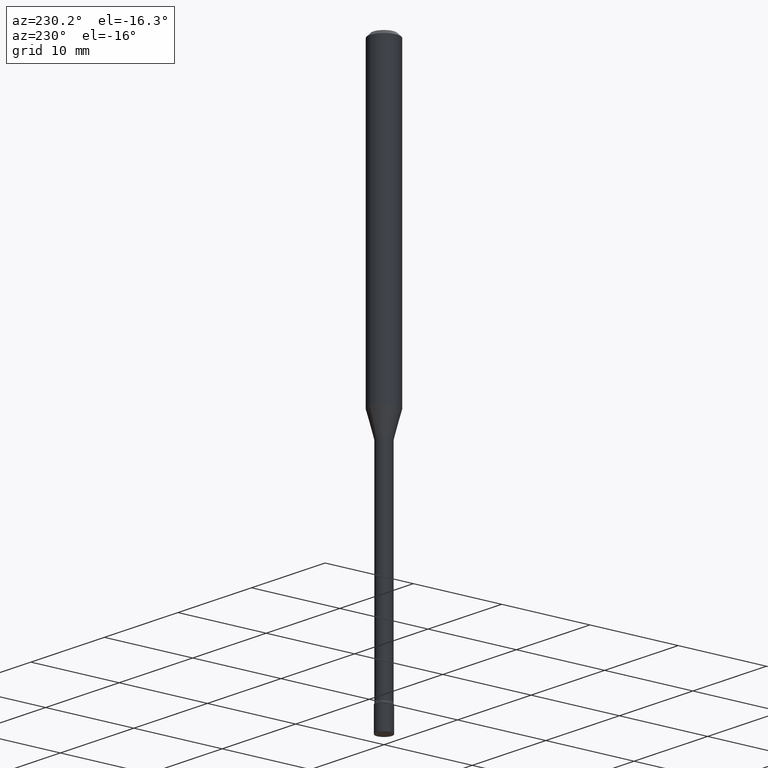
[diagram: clean part render]
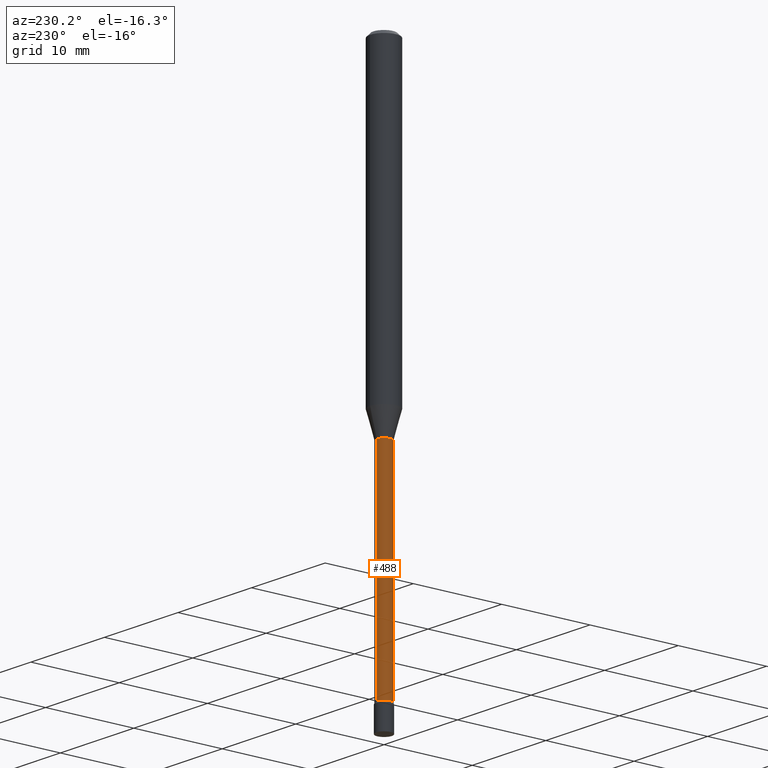
[diagram: same view with one face highlighted and labeled with its STEP entity id]
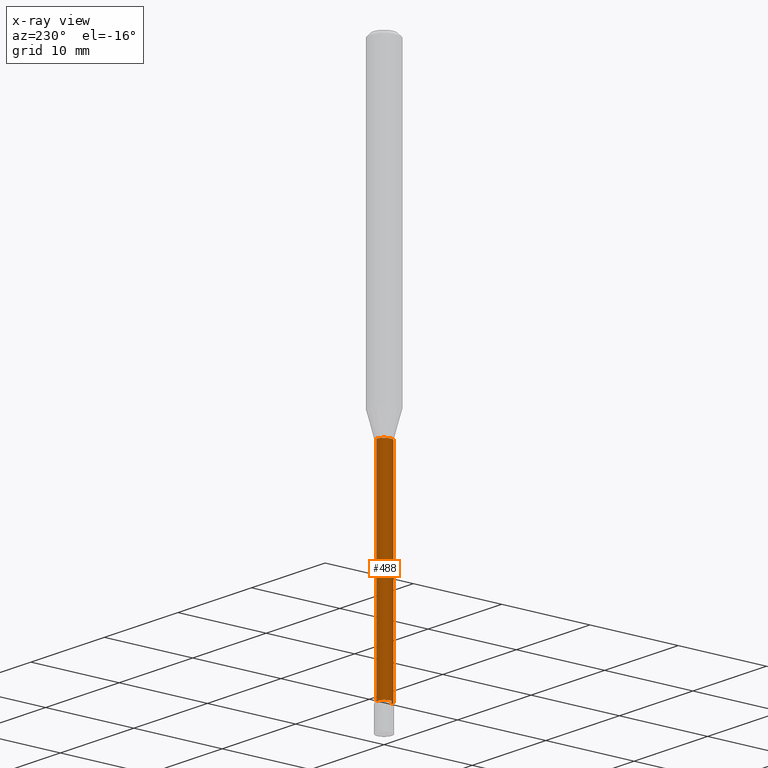
[diagram: x-ray of the same camera — body ghosted, the highlighted face saturated]
A machine part, auxiliary view. The second image highlights one B-rep face of the part: STEP entity #488.
The next image is the same camera in x-ray: the body ghosted, the highlighted face saturated — about 0% of this face is hidden behind the body in this view.
In plain terms, the highlighted cylindrical surface (edge-blend (fillet) strip) has radius 0.8357 mm, axis along (-0, 0, 1).
Its self-contained STEP definition (entity closure, byte-faithful):
#2 = ORIENTED_EDGE ( 'NONE', *, *, #472, .T. ) ;
#11 = DIRECTION ( 'NONE',  ( -6.982962677686265922E-15, -1.000000000000000000, 0.000000000000000000 ) ) ;
#15 = CARTESIAN_POINT ( 'NONE',  ( 0.000000000000000000, 0.000000000000000000, 0.000000000000000000 ) ) ;
#25 = CARTESIAN_POINT ( 'NONE',  ( 2.412292587906127904E-16, 0.03289999999999172753, -2.387345589506696175 ) ) ;
#28 = LINE ( 'NONE', #420, #309 ) ;
#47 = CARTESIAN_POINT ( 'NONE',  ( 5.838294968381408865E-29, -8.335206743429354077E-15, -2.387345589506696175 ) ) ;
#54 = CARTESIAN_POINT ( 'NONE',  ( -2.297394720958425553E-16, -0.03290000000000506408, -1.451974787463811145 ) ) ;
#60 = VERTEX_POINT ( 'NONE', #25 ) ;
#87 = FACE_OUTER_BOUND ( 'NONE', #114, .T. ) ;
#100 = DIRECTION ( 'NONE',  ( -2.445517311797238688E-29, 3.491411876045848246E-15, 1.000000000000000000 ) ) ;
#114 = EDGE_LOOP ( 'NONE', ( #295, #2, #287, #130 ) ) ;
#124 = DIRECTION ( 'NONE',  ( -2.445517311797238408E-29, 3.491411876045847852E-15, 1.000000000000000000 ) ) ;
#130 = ORIENTED_EDGE ( 'NONE', *, *, #480, .F. ) ;
#146 = AXIS2_PLACEMENT_3D ( 'NONE', #281, #369, #11 ) ;
#160 = EDGE_CURVE ( 'NONE', #337, #407, #28, .T. ) ;
#189 = EDGE_CURVE ( 'NONE', #60, #351, #385, .T. ) ;
#204 = AXIS2_PLACEMENT_3D ( 'NONE', #47, #367, #209 ) ;
#209 = DIRECTION ( 'NONE',  ( -6.982962677686266711E-15, -1.000000000000000000, 0.000000000000000000 ) ) ;
#211 = AXIS2_PLACEMENT_3D ( 'NONE', #15, #124, #450 ) ;
#240 = CIRCLE ( 'NONE', #204, 0.03290000000000006114 ) ;
#244 = CYLINDRICAL_SURFACE ( 'NONE', #211, 0.03290000000000002645 ) ;
#281 = CARTESIAN_POINT ( 'NONE',  ( 3.550829479035866217E-29, -5.069442016670295650E-15, -1.451974787463811145 ) ) ;
#286 = CARTESIAN_POINT ( 'NONE',  ( 2.337685600650730998E-16, 0.03290000000000002645, -1.148674507219084772E-16 ) ) ;
#287 = ORIENTED_EDGE ( 'NONE', *, *, #160, .T. ) ;
#295 = ORIENTED_EDGE ( 'NONE', *, *, #189, .F. ) ;
#309 = VECTOR ( 'NONE', #460, 39.37007874015748143 ) ;
#337 = VERTEX_POINT ( 'NONE', #516 ) ;
#339 = CIRCLE ( 'NONE', #146, 0.03289999999999999175 ) ;
#351 = VERTEX_POINT ( 'NONE', #476 ) ;
#367 = DIRECTION ( 'NONE',  ( -2.445517311797238408E-29, 3.491411876045847852E-15, 1.000000000000000000 ) ) ;
#369 = DIRECTION ( 'NONE',  ( -2.445517311797238408E-29, 3.491411876045847852E-15, 1.000000000000000000 ) ) ;
#385 = LINE ( 'NONE', #286, #409 ) ;
#407 = VERTEX_POINT ( 'NONE', #54 ) ;
#409 = VECTOR ( 'NONE', #100, 39.37007874015748143 ) ;
#420 = CARTESIAN_POINT ( 'NONE',  ( -2.297394720958783499E-16, -0.03290000000000002645, 1.148674507219084772E-16 ) ) ;
#450 = DIRECTION ( 'NONE',  ( -6.982962677686266711E-15, -1.000000000000000000, 3.491411876045847458E-15 ) ) ;
#460 = DIRECTION ( 'NONE',  ( -2.445517311797238688E-29, 3.491411876045848246E-15, 1.000000000000000000 ) ) ;
#472 = EDGE_CURVE ( 'NONE', #60, #337, #240, .T. ) ;
#476 = CARTESIAN_POINT ( 'NONE',  ( 2.337685600651315248E-16, 0.03289999999999491942, -1.451974787463811145 ) ) ;
#480 = EDGE_CURVE ( 'NONE', #351, #407, #339, .T. ) ;
#488 = ADVANCED_FACE ( 'NONE', ( #87 ), #244, .T. ) ;
#516 = CARTESIAN_POINT ( 'NONE',  ( -2.297394720958201714E-16, -0.03290000000000839475, -2.387345589506696175 ) ) ;